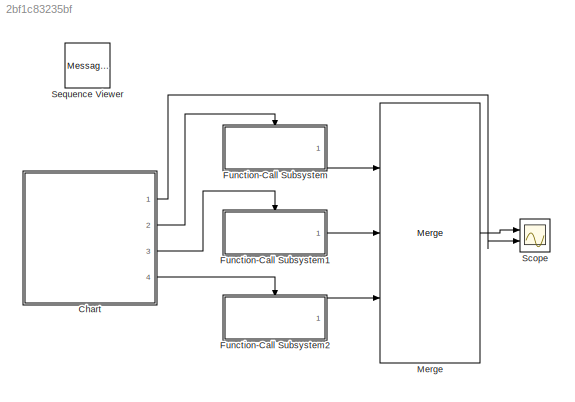
MODEL slx_2bf1c83235bf
KIND model
CONFIG AbsTol = auto
CONFIG EnableMultiTasking = off
CONFIG FixedStep = auto
CONFIG MaxStep = 0.5
CONFIG MinStep = auto
CONFIG RelTol = 1e-3
CONFIG SampleTimeConstraint = Unconstrained
CONFIG Solver = VariableStepDiscrete
CONFIG SolverName = VariableStepDiscrete
CONFIG StartTime = 0.0
CONFIG StopTime = 10.0
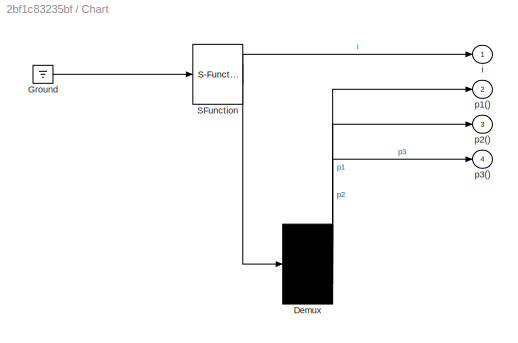
BLOCK [SubSystem] Chart
  ErrorFcn = Stateflow.Translate.translate
  PermitHierarchicalResolution = ExplicitOnly
  Ports = [0, 4]
  RequestExecContextInheritance = off
  SFBlockType = Chart
  TreatAsAtomicUnit = on
BLOCK [Demux] Chart/ Demux 
  Outputs = 3
  Ports = [1, 3]
BLOCK [Ground] Chart/ Ground 
BLOCK [S-Function] Chart/ SFunction 
  EnableBusSupport = on
  FunctionName = sf_sfun
  PortCounts = [1 2]
  Ports = [1, 2]
  SFcnIsStateOwnerBlock = off
  SFunctionDeploymentMode = off
  Tag = Stateflow S-Function events_in_stateflow 3
BLOCK [Outport] Chart/i
  IconDisplay = Port number
BLOCK [Outport] Chart/p1()
  IconDisplay = Port number
  Port = 2
BLOCK [Outport] Chart/p2()
  IconDisplay = Port number
  Port = 3
BLOCK [Outport] Chart/p3()
  IconDisplay = Port number
  Port = 4
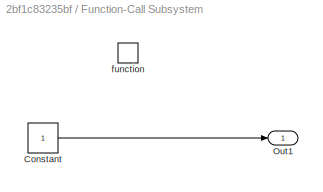
BLOCK [SubSystem] Function-Call Subsystem
  Ports = [0, 1, 0, 1]
  RequestExecContextInheritance = off
  TreatAsAtomicUnit = on
BLOCK [Constant] Function-Call Subsystem/Constant
BLOCK [Outport] Function-Call Subsystem/Out1
  IconDisplay = Port number
BLOCK [TriggerPort] Function-Call Subsystem/function
  Ports = []
  StatesWhenEnabling = held
  TriggerType = function-call
  VariantControl = Variant
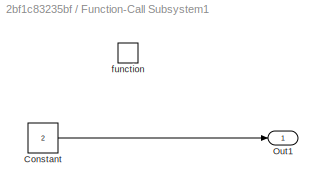
BLOCK [SubSystem] Function-Call Subsystem1
  Ports = [0, 1, 0, 1]
  RequestExecContextInheritance = off
  TreatAsAtomicUnit = on
BLOCK [Constant] Function-Call Subsystem1/Constant
  Value = 2
BLOCK [Outport] Function-Call Subsystem1/Out1
  IconDisplay = Port number
BLOCK [TriggerPort] Function-Call Subsystem1/function
  Ports = []
  StatesWhenEnabling = held
  TriggerType = function-call
  VariantControl = Variant
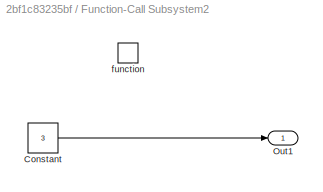
BLOCK [SubSystem] Function-Call Subsystem2
  Ports = [0, 1, 0, 1]
  RequestExecContextInheritance = off
  TreatAsAtomicUnit = on
BLOCK [Constant] Function-Call Subsystem2/Constant
  Value = 3
BLOCK [Outport] Function-Call Subsystem2/Out1
  IconDisplay = Port number
BLOCK [TriggerPort] Function-Call Subsystem2/function
  Ports = []
  StatesWhenEnabling = held
  TriggerType = function-call
  VariantControl = Variant
BLOCK [Merge] Merge
  Inputs = 3
  Ports = [3, 1]
BLOCK [Scope] Scope
  Floating = off
  NumInputPorts = 2
  Ports = [2]
  ScopeSpecificationString = Simulink.scopes.TimeScopeBlockCfg('CurrentConfiguration', extmgr.ConfigurationSet(extmgr.Configuration('Core','General UI',true),extmgr.Configuration('Core','Source UI',true),extmgr.Configuration('Sources','WiredSimulink',true),extmgr.Configuration('Visuals','Time Domain',true,'SerializedDisplays',{struct('MinYLimReal','0.75','MaxYLimReal','3.25','YLabelReal','','MinYLimMag','0.75','MaxYLimMag','3...<+2023ch>
BLOCK [MessageViewer] Sequence Viewer
LINE Chart:1 -> Scope:2
LINE Chart:2 -> Function-Call Subsystem:trigger
LINE Chart:3 -> Function-Call Subsystem1:trigger
LINE Chart:4 -> Function-Call Subsystem2:trigger
LINE Function-Call Subsystem/Constant:1 -> Function-Call Subsystem/Out1:1
LINE Function-Call Subsystem1/Constant:1 -> Function-Call Subsystem1/Out1:1
LINE Function-Call Subsystem1:1 -> Merge:2
LINE Function-Call Subsystem2/Constant:1 -> Function-Call Subsystem2/Out1:1
LINE Function-Call Subsystem2:1 -> Merge:3
LINE Function-Call Subsystem:1 -> Merge:1
LINE Merge:1 -> Scope:1
CHART Chart states=7 transitions=8
  STATE_LABEL 'action'
  STATE_LABEL 'one\nen: p1;\ndu: p1;'
  STATE_LABEL 'three\nen: p3;\ndu: p3;'
  STATE_LABEL 'two\nen: p2;\ndu: p2;'
  STATE_LABEL '[i>=3]'
  STATE_LABEL '[i>=3]'
  STATE_LABEL '[i>=3]'
  STATE_LABEL 'one\nen: p1;\ndu: p1;'
  STATE_LABEL 'three\nen: p3;\ndu: p3;'
  STATE_LABEL 'two\nen: p2;\ndu: p2;'
  STATE_LABEL 'counter'
  STATE_LABEL 'init\nen: i = 0;'
  STATE_LABEL 'count\nen: i = 1;\ndu: i = i+1;'
  STATE_LABEL '[i>=3]'
  STATE_LABEL 'init\nen: i = 0;'
  STATE_LABEL 'count\nen: i = 1;\ndu: i = i+1;'
